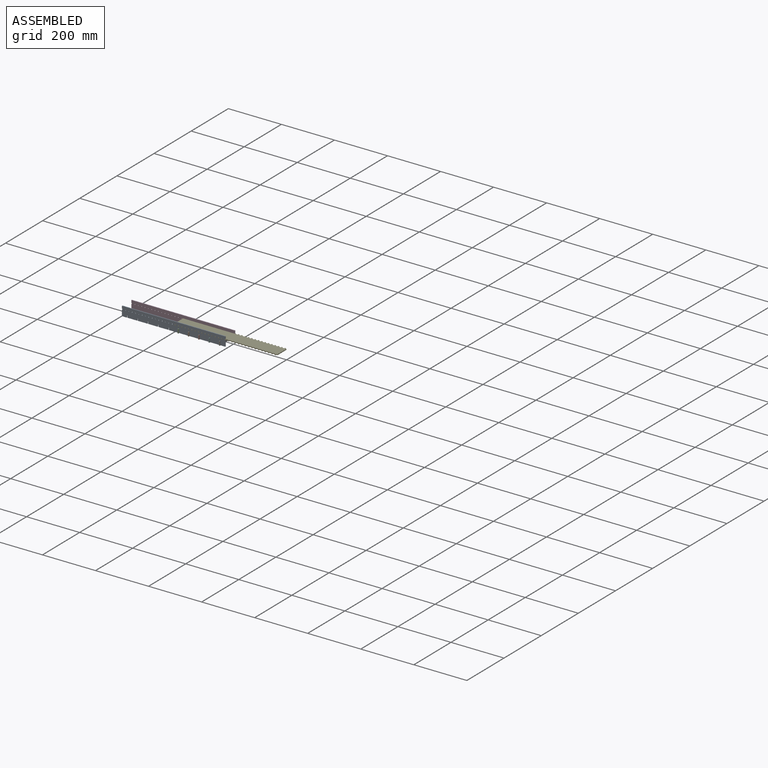
[diagram: assembled view]
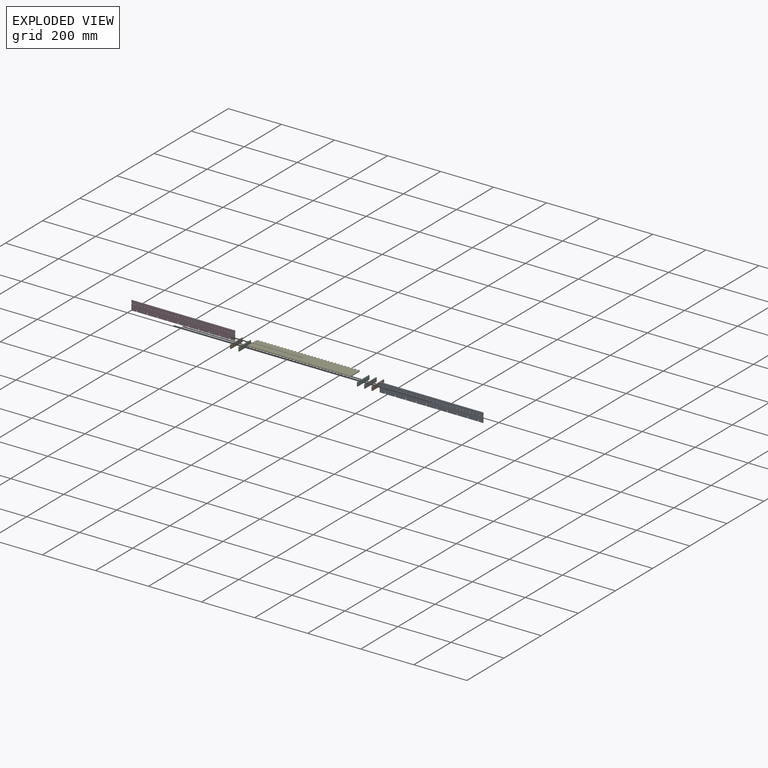
[diagram: exploded view]
GUIDED TOUR — MATED ASSEMBLY (Onshape document f6044e9ccefdb1f1ad6124b9, AutoMate assembly f6044e9ccefdb1f1ad6124b9_2b7dd864d5960ae03ffc131b_1af94c9dfe3be60c625ddc2c_default)

This assembly has 8 components, labeled P0..P7 below (a component is one placed occurrence of a part; the same part can appear more than once), held together by 7 mates. A mate is a constraint between two components; its type names the relative motion it leaves free:
  FASTENED — locks the two components together rigidly (no relative motion).
Axis/direction vectors are unit vectors and 'through' points are millimeter coordinates, both in the assembly's world frame.

MATES
  1. FASTENED "Fastened 1": P0 <-> P4, direction (1.000, 0.000, 0.000) through (199.49, -43.00, 25.00) mm
  2. FASTENED "Fastened 2": P3 <-> P4, direction (1.000, 0.000, 0.000) through (199.49, 5.00, 25.00) mm
  3. FASTENED "Fastened 3": P2 <-> P3, direction (-1.000, 0.000, 0.000) through (24.26, 8.00, 7.50) mm
  4. FASTENED "Fastened 7": P6 <-> P3, direction (-1.000, 0.000, 0.000) through (180.08, 8.00, 7.50) mm
  5. FASTENED "Fastened 5": P7 <-> P3, direction (-1.000, 0.000, 0.000) through (102.17, 8.00, 7.50) mm
  6. FASTENED "Fastened 4": P1 <-> P3, direction (-1.000, 0.000, 0.000) through (63.22, 8.00, 7.50) mm
  7. FASTENED "Fastened 6": P5 <-> P3, direction (-1.000, 0.000, 0.000) through (141.13, 8.00, 7.50) mm

ASSEMBLY ORDER
  1. P5 — the base component [order verified]
  2. P3 [order verified]
  3. P0 [order verified]
  4. P7 [order verified]
  5. P6 [order verified]
  6. P4 [order verified]
  7. P1 [order verified]
  8. P2 [order verified]
Order-tag legend:
  [order verified] — this step's position reverses a verified removal order: the component was checked to insert without passing through the ones already placed.

Of the 8 components, 5 carry the full construction recipe — the FeatureScript program that regenerates the part's solid from scratch; the rest are supplied as boundary geometry only.
Each toured component is shown spotlighted twice — in the assembled view, then in the exploded view, where a leader line traces a displaced component back to its assembled socket (saturated green if recipe-attached, orange if geometry-only; every other component desaturated gray) — followed by its recipe or geometry summary and the mates that hold it.
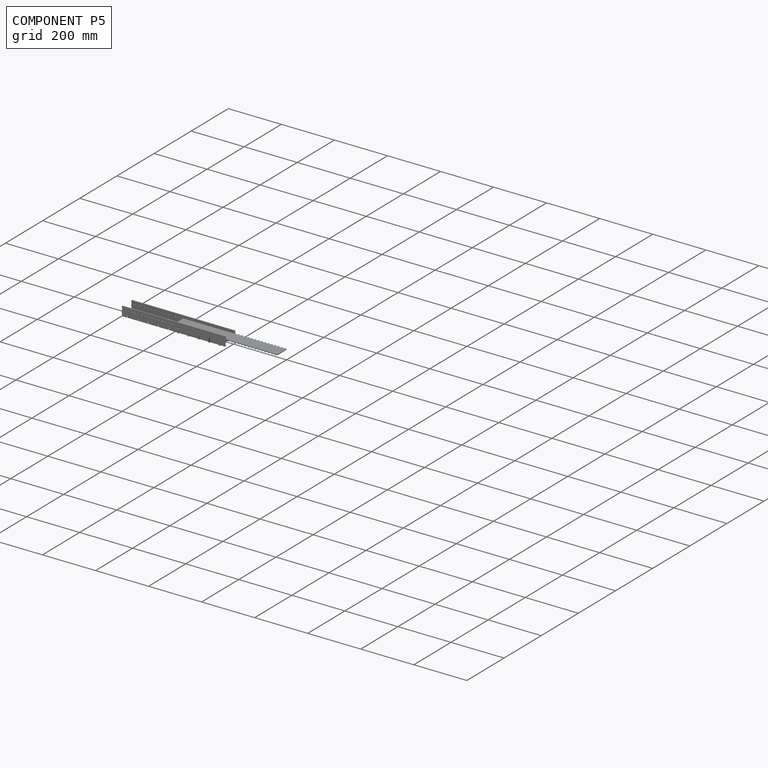
[diagram: component P5 — assembled]
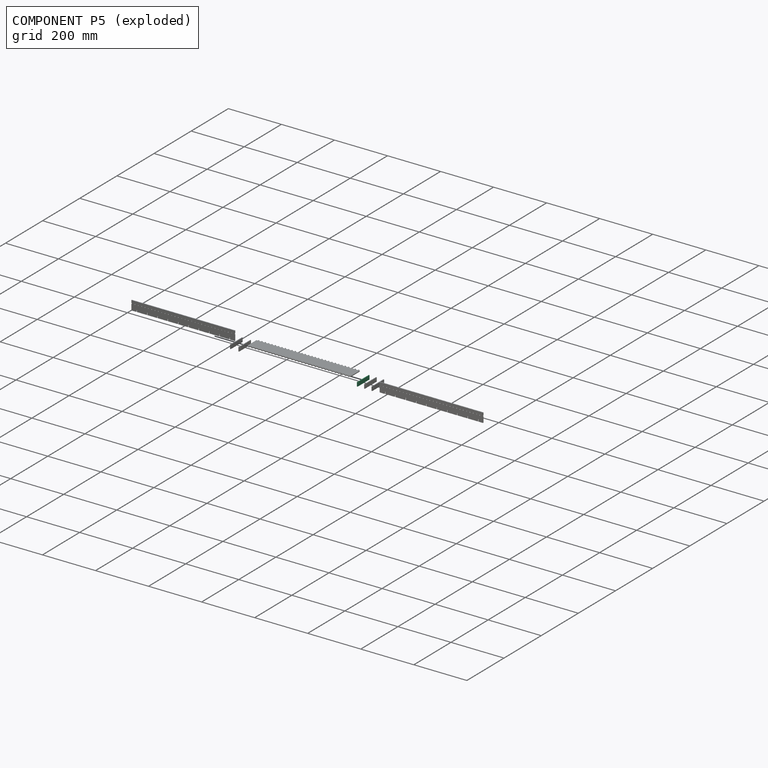
[diagram: component P5 — exploded]
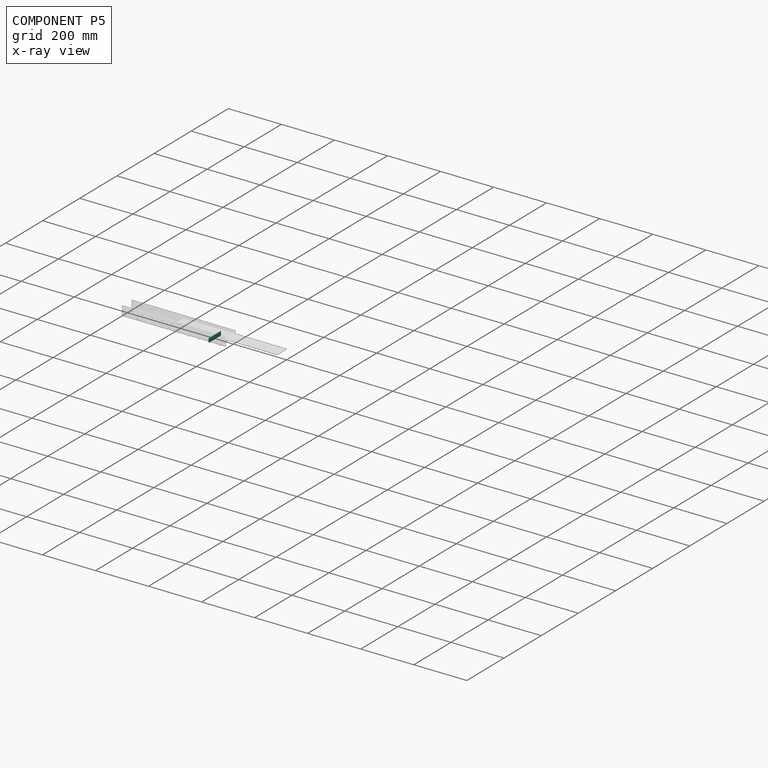
[diagram: component P5 — x-ray view]
COMPONENT P5 — same part as P1 (CADFS 00325521); its construction recipe is shown at P1.
Held by: FASTENED mate "Fastened 6" to P3.
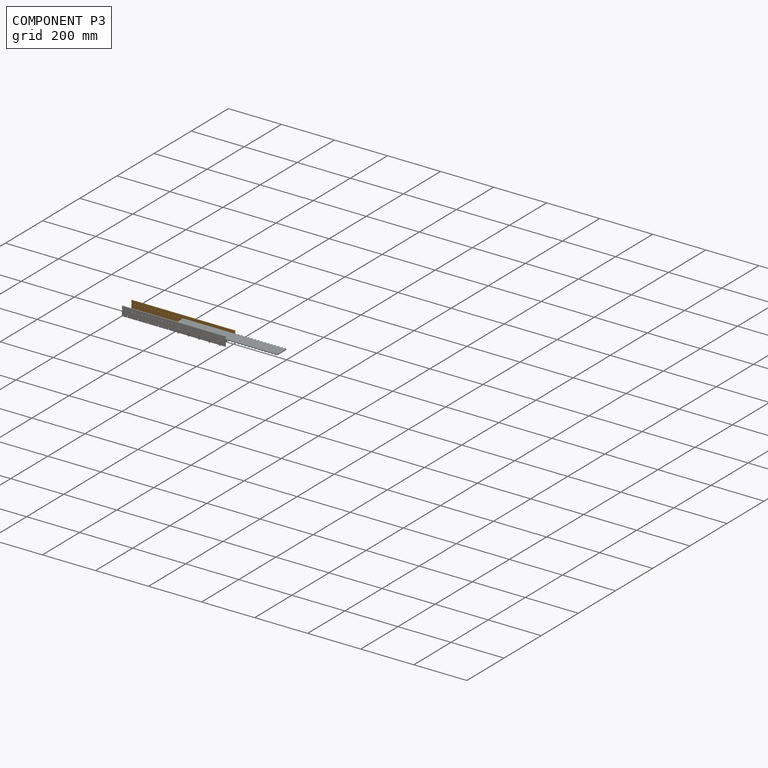
[diagram: component P3 — assembled]
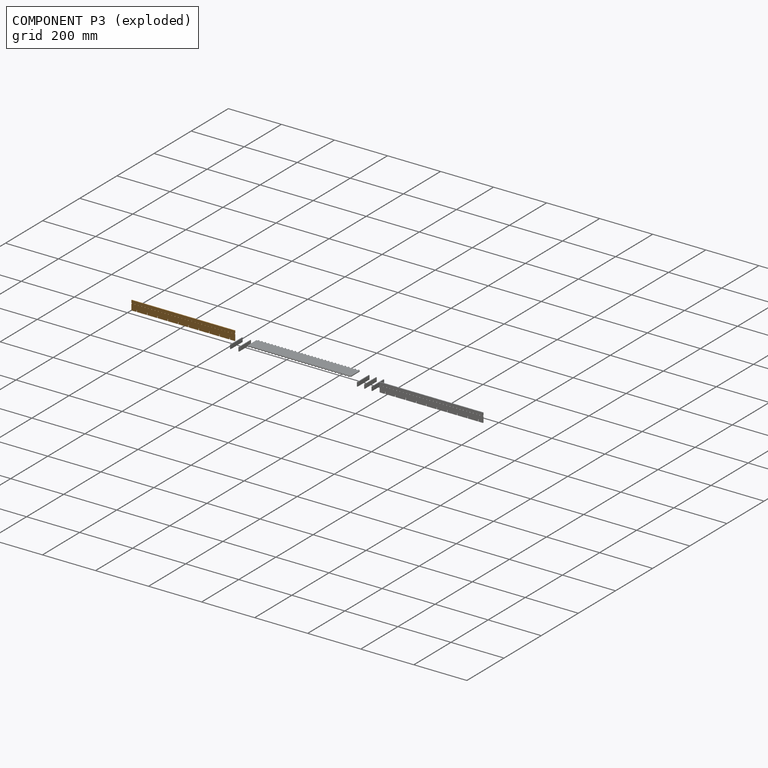
[diagram: component P3 — exploded]
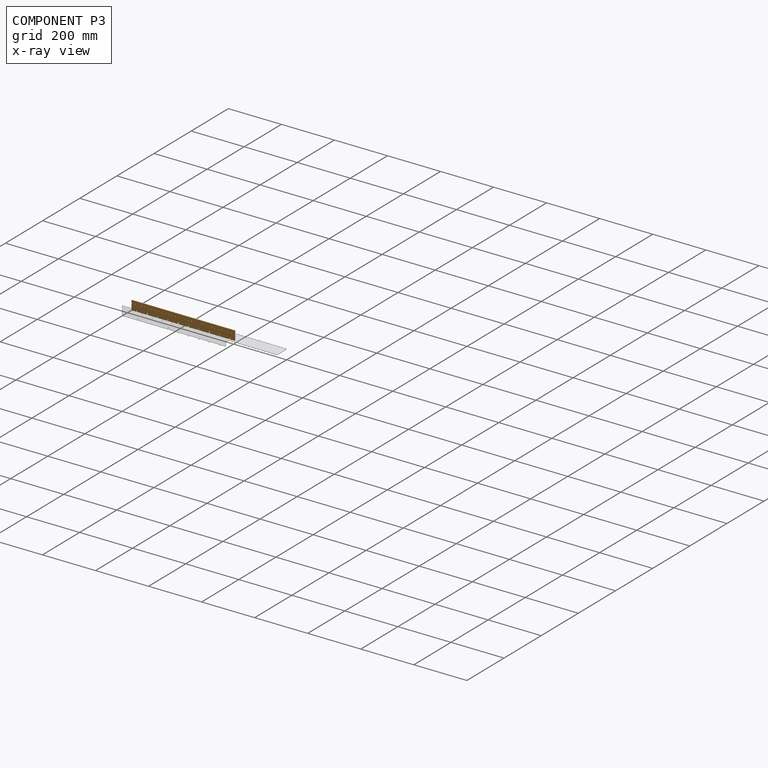
[diagram: component P3 — x-ray view]
COMPONENT P3 — geometry summary (no construction recipe available for this part):
  bounding box: 389.6 x 35.0 x 3.0 mm
  B-rep topology: 1 solid, 174 faces, 1032 edges
  volume: 39352 mm^3 (96% of its bounding box)
  symmetry: 2-fold rotationally symmetric about the x axis; 2-fold rotationally symmetric about the y axis; 2-fold rotationally symmetric about the z axis; mirror-symmetric across its x mid-plane, y mid-plane, z mid-plane
Held by: FASTENED mate "Fastened 2" to P4; FASTENED mate "Fastened 3" to P2; FASTENED mate "Fastened 7" to P6; FASTENED mate "Fastened 5" to P7; FASTENED mate "Fastened 4" to P1; FASTENED mate "Fastened 6" to P5.
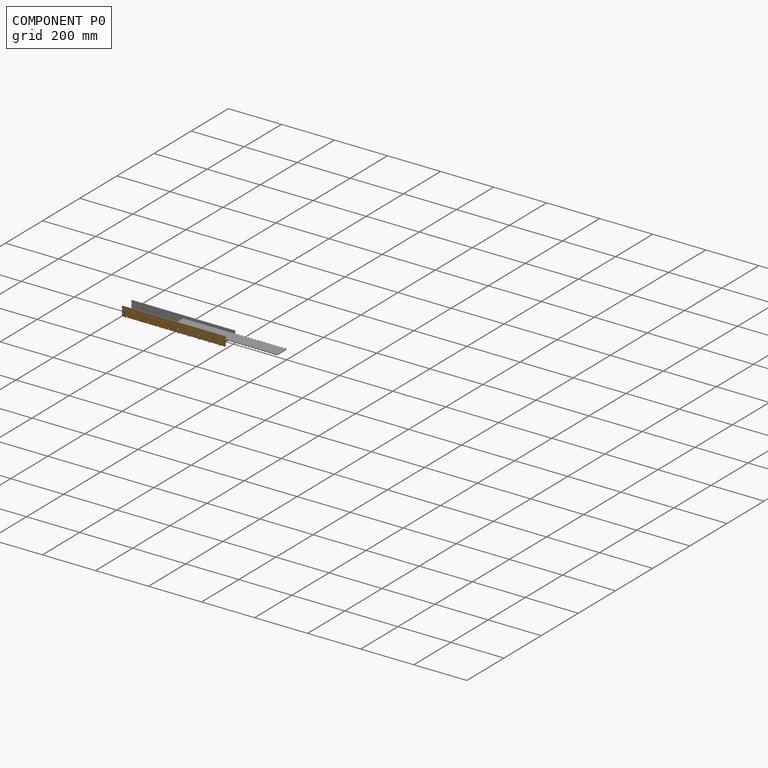
[diagram: component P0 — assembled]
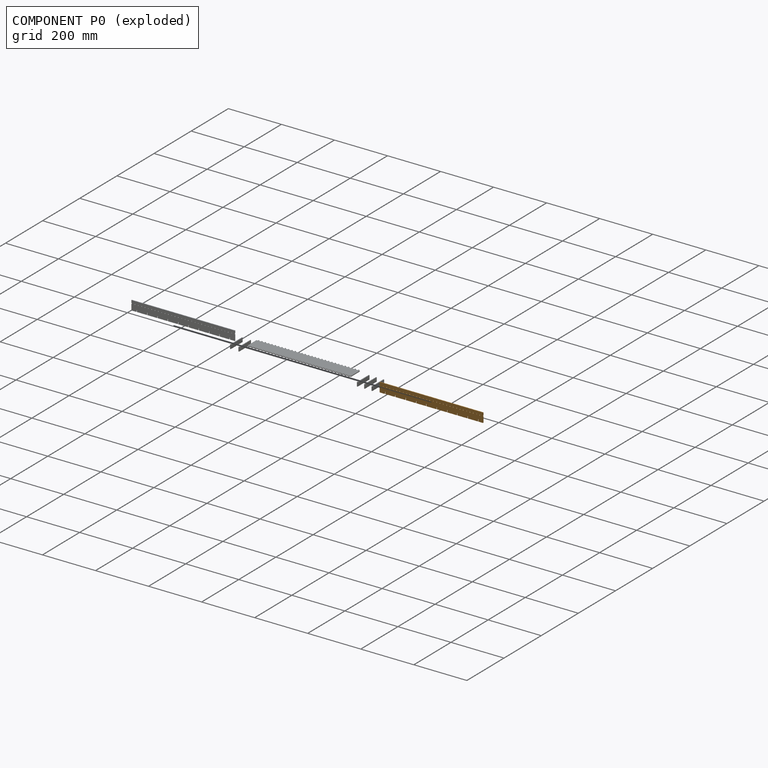
[diagram: component P0 — exploded]
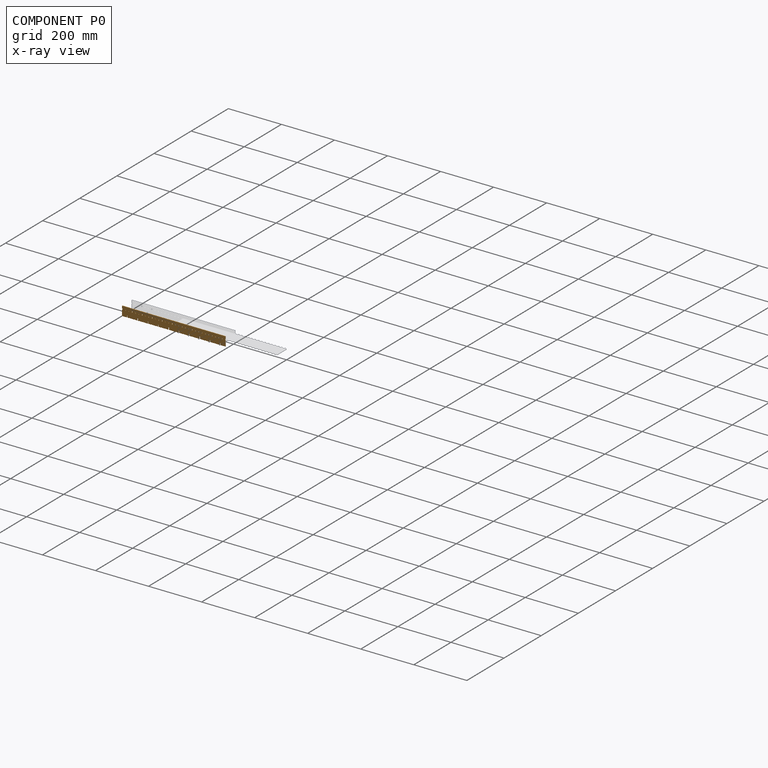
[diagram: component P0 — x-ray view]
COMPONENT P0 — geometry summary (no construction recipe available for this part):
  bounding box: 389.6 x 35.0 x 3.0 mm
  B-rep topology: 1 solid, 174 faces, 1032 edges
  volume: 39352 mm^3 (96% of its bounding box)
  symmetry: 2-fold rotationally symmetric about the x axis; 2-fold rotationally symmetric about the y axis; 2-fold rotationally symmetric about the z axis; mirror-symmetric across its x mid-plane, y mid-plane, z mid-plane
Held by: FASTENED mate "Fastened 1" to P4.
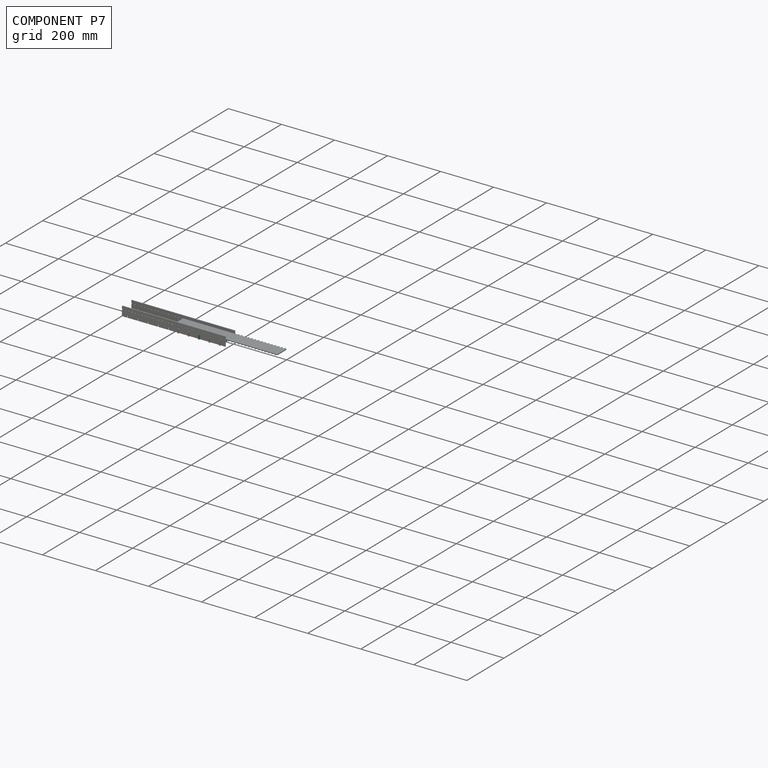
[diagram: component P7 — assembled]
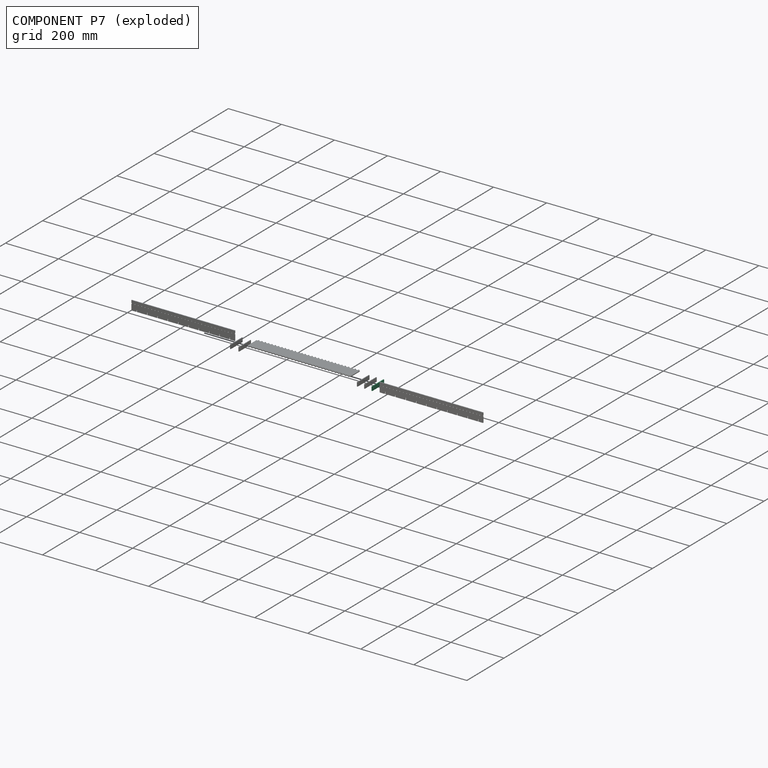
[diagram: component P7 — exploded]
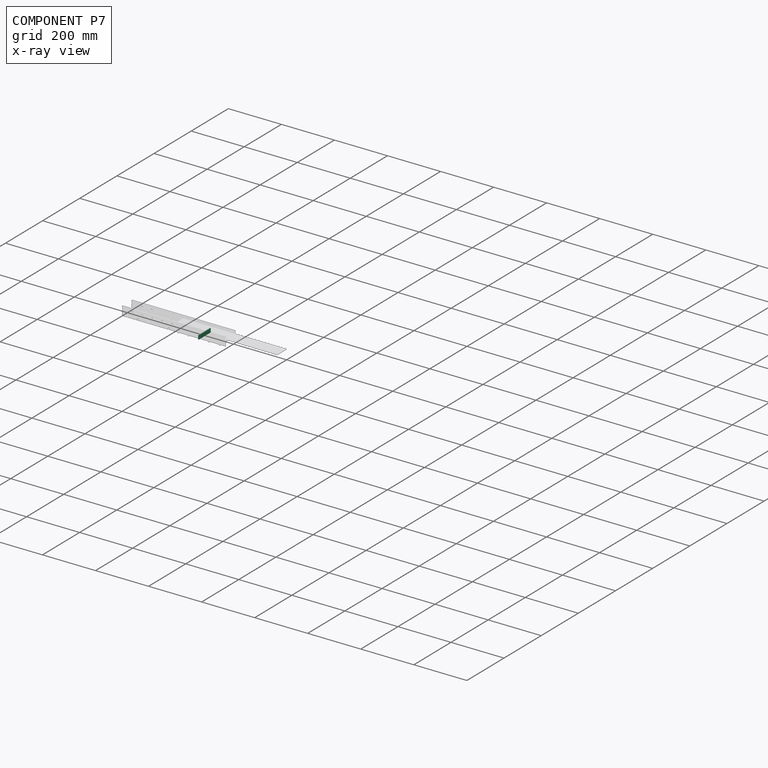
[diagram: component P7 — x-ray view]
COMPONENT P7 — same part as P1 (CADFS 00325521); its construction recipe is shown at P1.
Held by: FASTENED mate "Fastened 5" to P3.
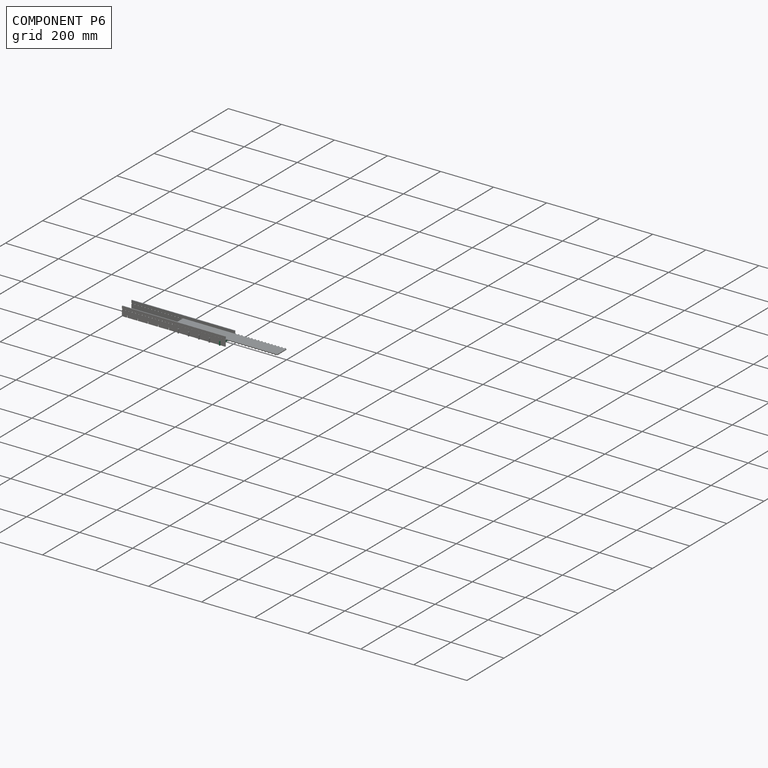
[diagram: component P6 — assembled]
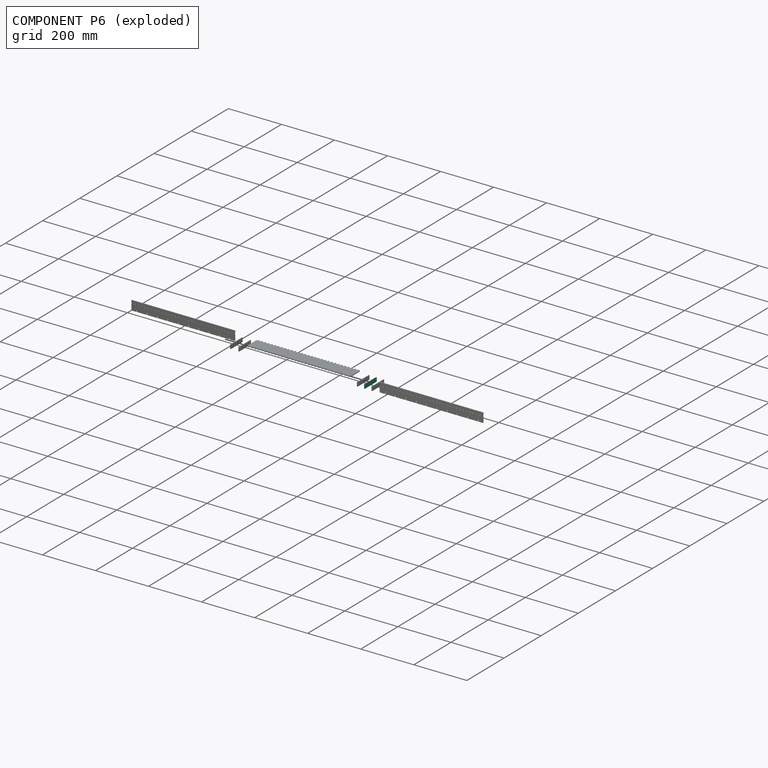
[diagram: component P6 — exploded]
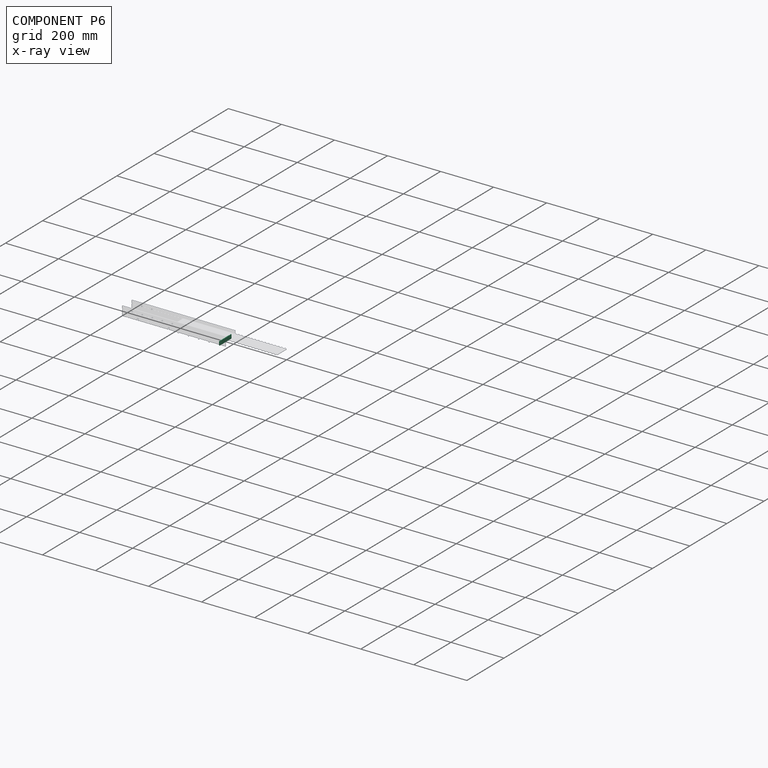
[diagram: component P6 — x-ray view]
COMPONENT P6 — same part as P1 (CADFS 00325521); its construction recipe is shown at P1.
Held by: FASTENED mate "Fastened 7" to P3.
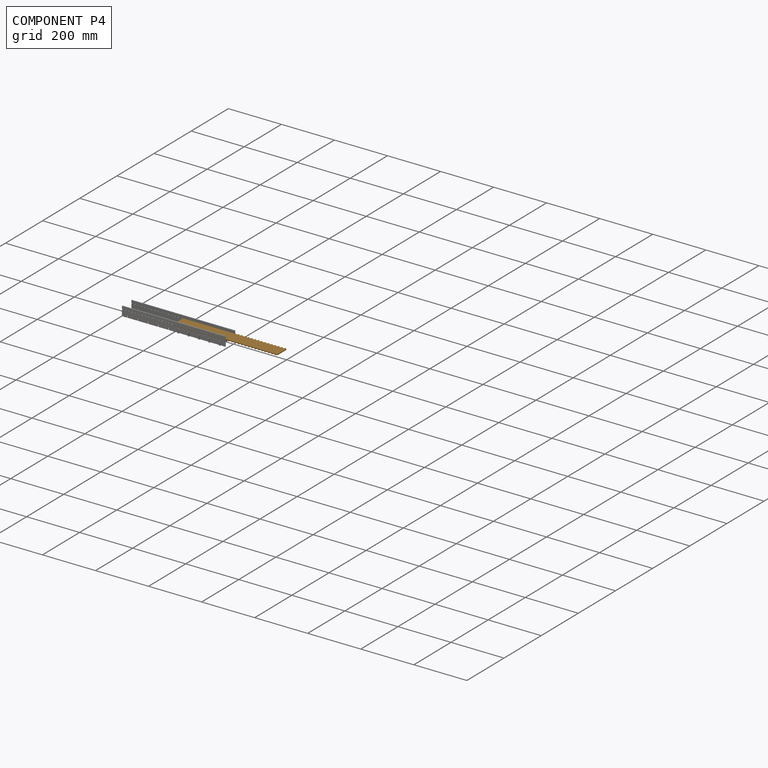
[diagram: component P4 — assembled]
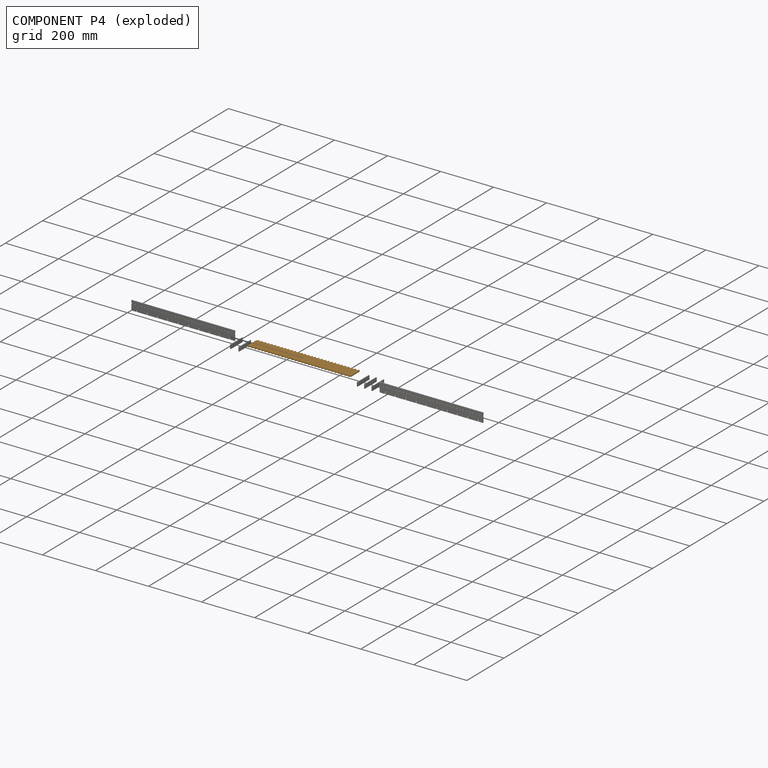
[diagram: component P4 — exploded]
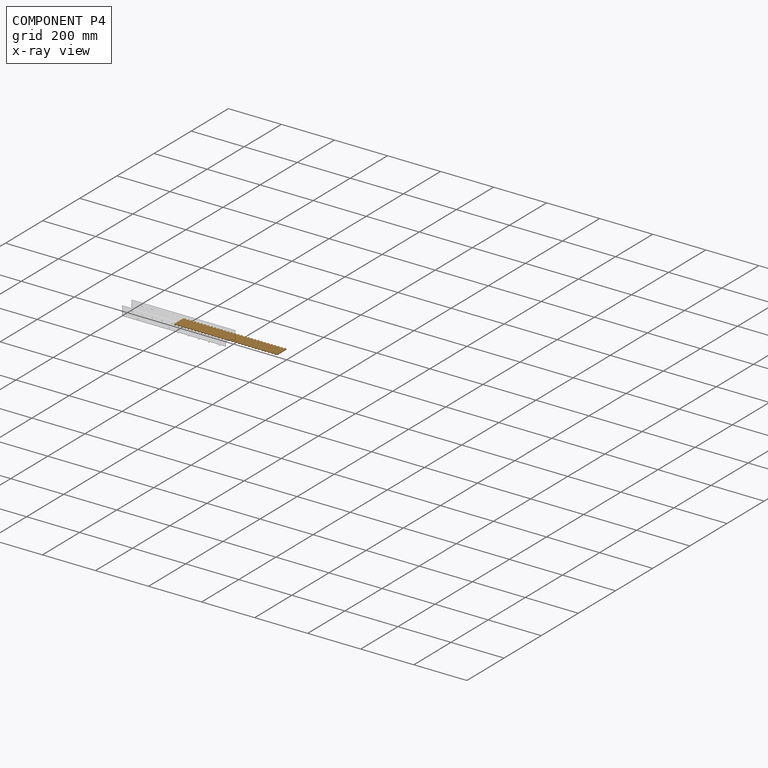
[diagram: component P4 — x-ray view]
COMPONENT P4 — geometry summary (no construction recipe available for this part):
  bounding box: 389.6 x 56.0 x 3.0 mm
  B-rep topology: 1 solid, 254 faces, 1512 edges
  volume: 58434 mm^3 (89% of its bounding box)
  symmetry: 2-fold rotationally symmetric about the x axis; 2-fold rotationally symmetric about the y axis; 2-fold rotationally symmetric about the z axis; mirror-symmetric across its x mid-plane, y mid-plane, z mid-plane
Held by: FASTENED mate "Fastened 1" to P0; FASTENED mate "Fastened 2" to P3.
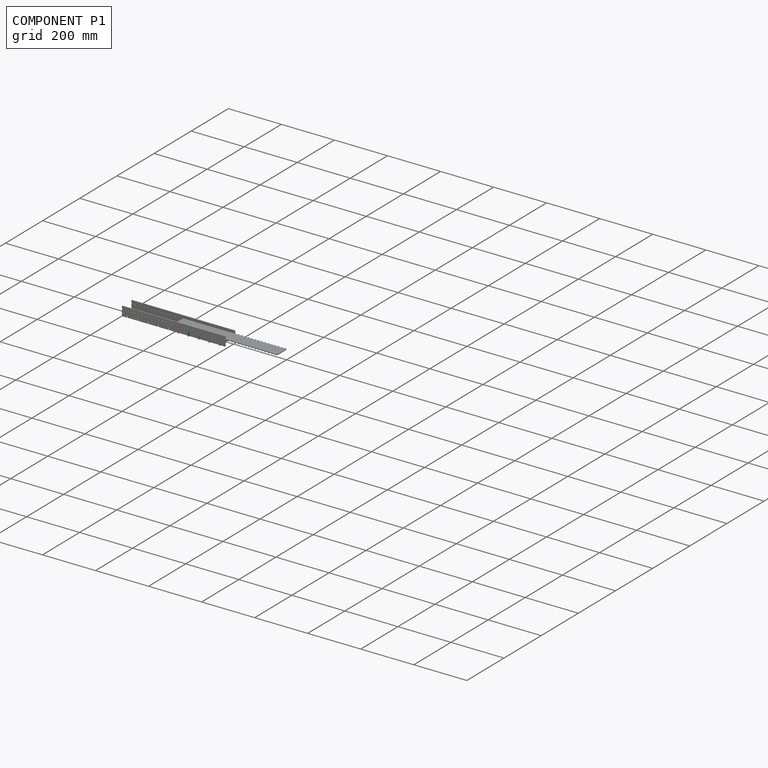
[diagram: component P1 — assembled]
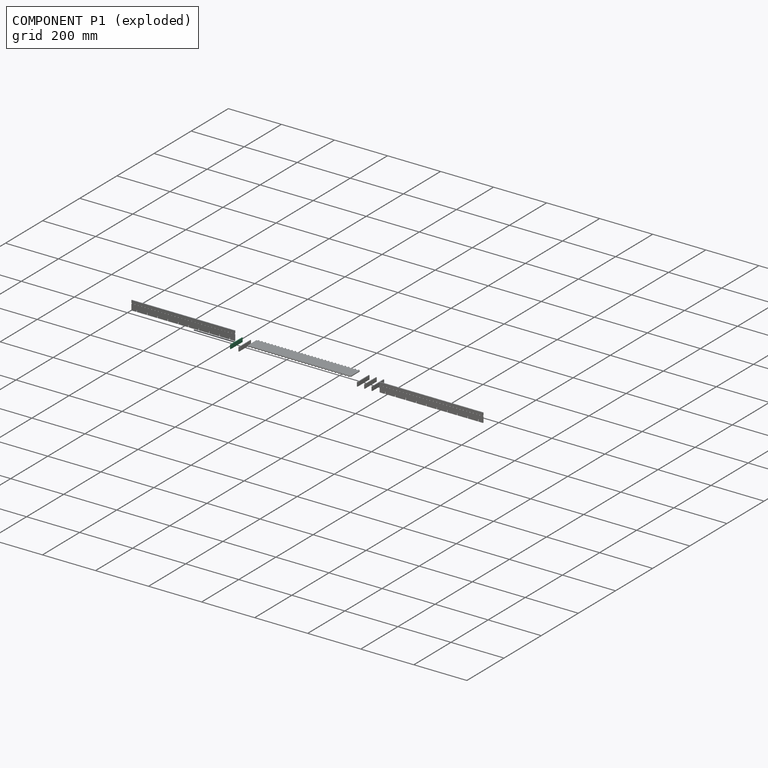
[diagram: component P1 — exploded]
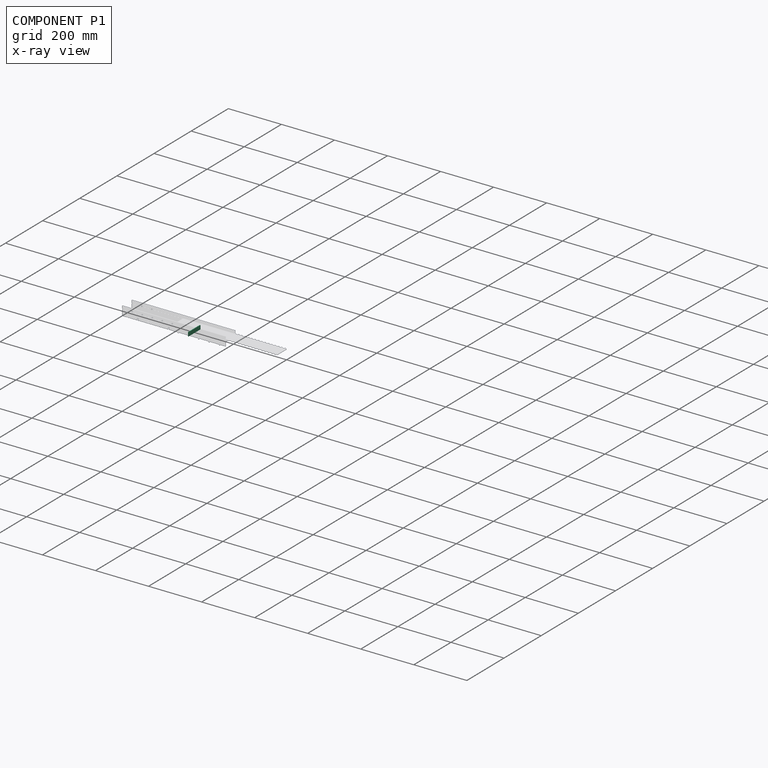
[diagram: component P1 — x-ray view]
COMPONENT P1 — recipe-attached (CADFS 00325521, mesh-verified: the recipe's output STEP matches this component's geometry to below the mesh-comparison resolution (tessellation chordal tolerance ~0.0981 mm)).
Held by: FASTENED mate "Fastened 4" to P3.
Construction recipe (FeatureScript — the CAD program that rebuilds this solid; sketch coordinates are in the units given by the * unit suffixes, e.g. mm):

FeatureScript 1511;
import(path : "onshape/std/geometry.fs", version : "1511.0");
import(path : "onshape/std/common.fs", version : "1511.0");
const mm = millimeter;
const VERTEX = EntityType.VERTEX;
const EDGE = EntityType.EDGE;
const FACE = EntityType.FACE;
const BODY = EntityType.BODY;
function v(x, y){return vector(x, y);}
function OD(order){return orderDisambiguation(order);}
function OSD(set){return originalSetDisambiguation(set);}
function TD(topology){return topologyDisambiguation(topology);}
function TDD(query){return trueDependencyDisambiguation(query);}
function sQuery(a, b, c) {return sketchEntityQuery(a, b, c);}

annotation { "Feature Type Name" : "Feature", "Feature Type Description" : "" }
export const myFeature = defineFeature(function(context is Context, id is Id, definition is map)
    precondition{}
    {
        {
            var Q0;
            Q0=qCreatedBy(makeId("Right.planeOp"),FACE);
            var sketch = newSketch(context, id + "F0", { "sketchPlane" : qUnion([Q0])});
            skLineSegment(sketch, "E0.bottom", {"start": v(31.8, 7.5) * mm, "end": v(26.8, 7.5) * mm});
            skLineSegment(sketch, "E0.top", {"start": v(31.8, -7.5) * mm, "end": v(-31.8, -7.5) * mm});
            skLineSegment(sketch, "E0.left", {"start": v(31.8, 7.5) * mm, "end": v(31.8, -7.5) * mm});
            skLineSegment(sketch, "E0.right", {"start": v(-31.8, 7.5) * mm, "end": v(-31.8, -7.5) * mm});
            skPoint(sketch, "E0.middle", {"position": v(0, 0) * mm});
            skLineSegment(sketch, "E1.top", {"start": v(-26.8, 0) * mm, "end": v(-24, 0) * mm});
            skLineSegment(sketch, "E1.left", {"start": v(-26.8, 7.5) * mm, "end": v(-26.8, 0) * mm});
            skLineSegment(sketch, "E1.right", {"start": v(-24, 7.5) * mm, "end": v(-24, 0) * mm});
            skLineSegment(sketch, "E2.top", {"start": v(26.8, 0) * mm, "end": v(24, 0) * mm});
            skLineSegment(sketch, "E2.left", {"start": v(26.8, 7.5) * mm, "end": v(26.8, 0) * mm});
            skLineSegment(sketch, "E2.right", {"start": v(24, 7.5) * mm, "end": v(24, 0) * mm});
            skLineSegment(sketch, "E3.trimOffspring", {"start": v(24, 7.5) * mm, "end": v(-24, 7.5) * mm});
            skLineSegment(sketch, "E4.trimOffspring", {"start": v(-26.8, 7.5) * mm, "end": v(-31.8, 7.5) * mm});
            skLineSegment(sketch, "E5", {"start": v(0, -7.5) * mm, "end": v(0, 7.5) * mm, "construction": true});
            skSolve(sketch);
        }
        {
            var Q0;
            Q0 = qSketchRegion(id + "F0", true);
            extrude(context, id + "F1", {"entities" : qUnion([Q0]), "depth" : 3 * mm});
        }
    });
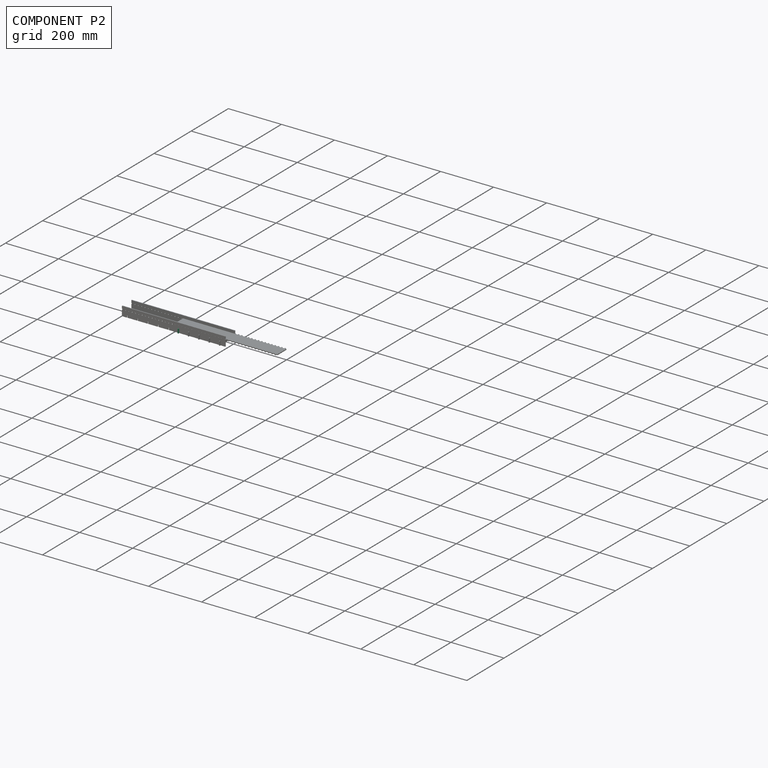
[diagram: component P2 — assembled]
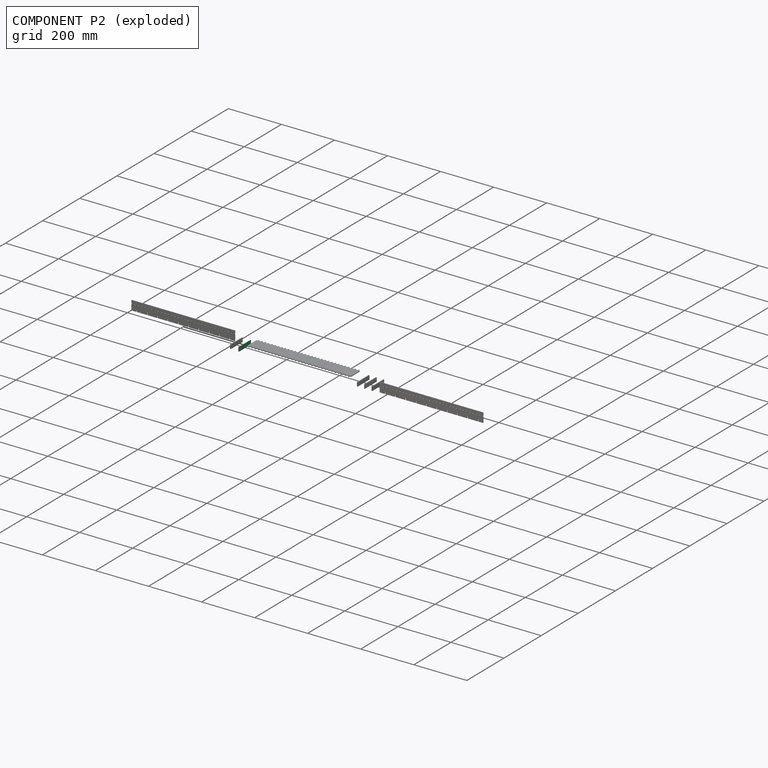
[diagram: component P2 — exploded]
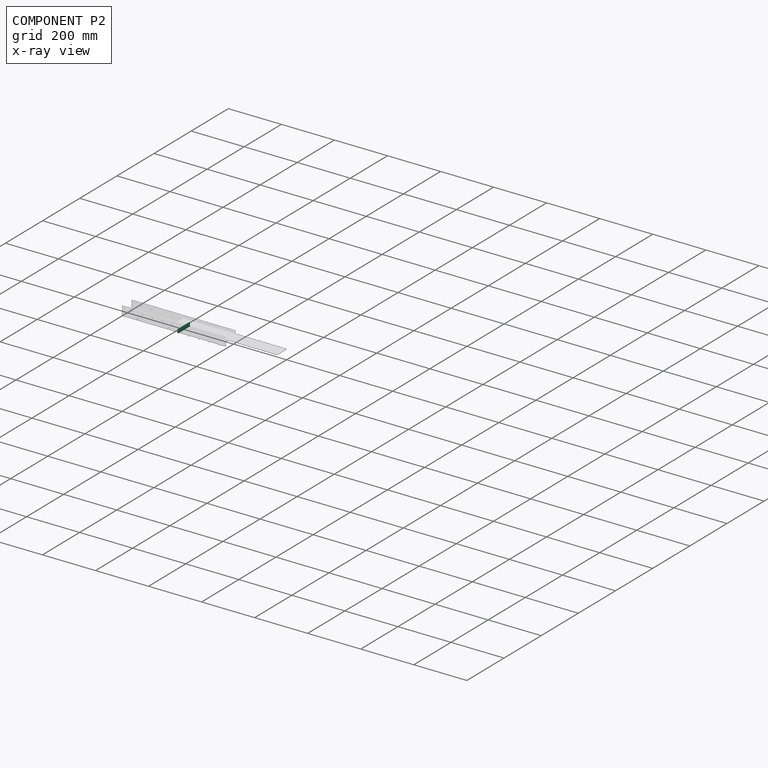
[diagram: component P2 — x-ray view]
COMPONENT P2 — same part as P1 (CADFS 00325521); its construction recipe is shown at P1.
Held by: FASTENED mate "Fastened 3" to P3.
PROVENANCE & LICENSES
Assembly (occurrences, transforms, mates, per-part STEP geometry): AutoMate dataset, Zenodo record 7776208, CC0.
Construction recipes: CADFS (HuggingFace VladPyatov/CADFS, CC-BY-4.0, layered over the ABC dataset), FeatureScript reconstruction programs keyed by ABC model id.
Join: ABC meta listings map ABC model id -> Onshape documentId; within a shared document, parts are matched by geometric signature (bounding-box dims + volume at 0.1% relative tolerance, exact B-rep face/solid counts).
Verification: 5 of this assembly's 8 components carry a recipe attachment, and every attachment is mesh-verified: the CADFS STEP and the AutoMate member STEP were compared as meshes in their shared local frame (symmetric sampled-point-to-mesh distance); worst across the 5 attachments: below the mesh-comparison resolution (tessellation chordal tolerance ~0.0981 mm) on a 65 mm part.
Renders: orthographic iso camera (az 35 / el 25); the floor grid conveys scale (grid pitch printed in each image; no ruler). In the exploded view each component is displaced by its stored offset vector: the offsets alone carry the explosion direction (mate normal/axis signs are not orientation cues and do not encode it), and separation distances are assigned per mate-chain, not proportionally to assembly-order depth.
